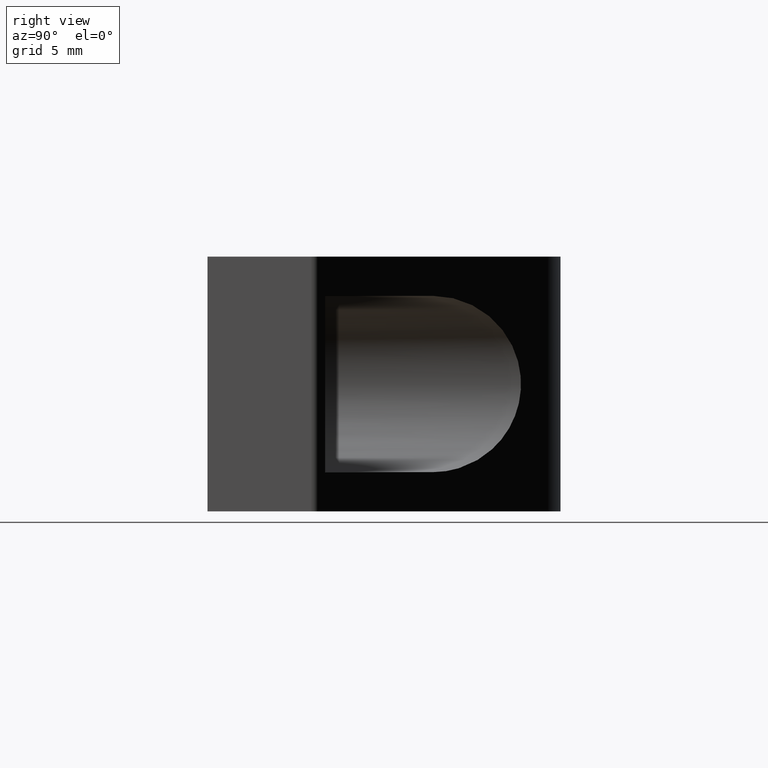
[diagram: clean part render]
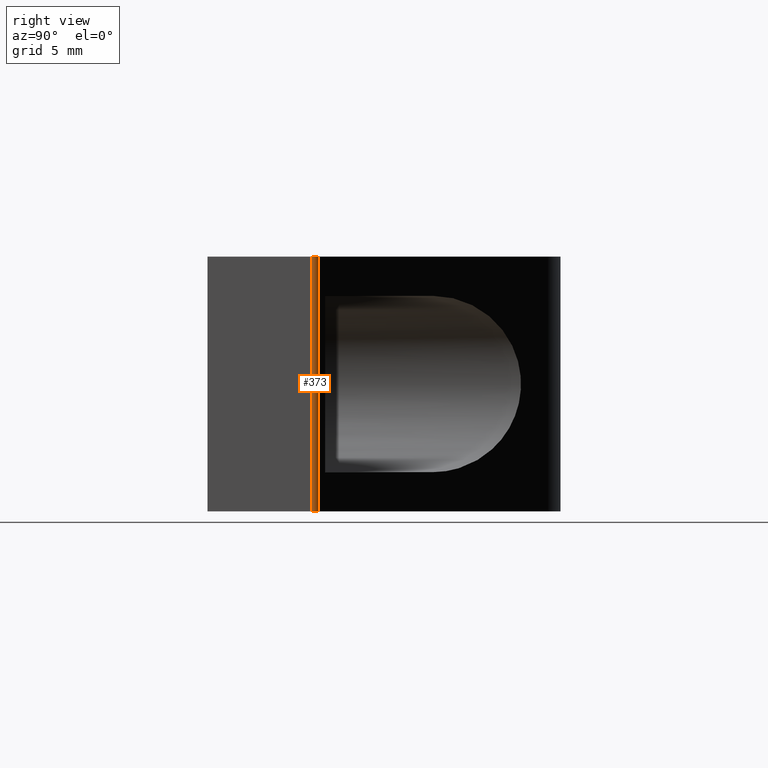
[diagram: same view with one face highlighted and labeled with its STEP entity id]
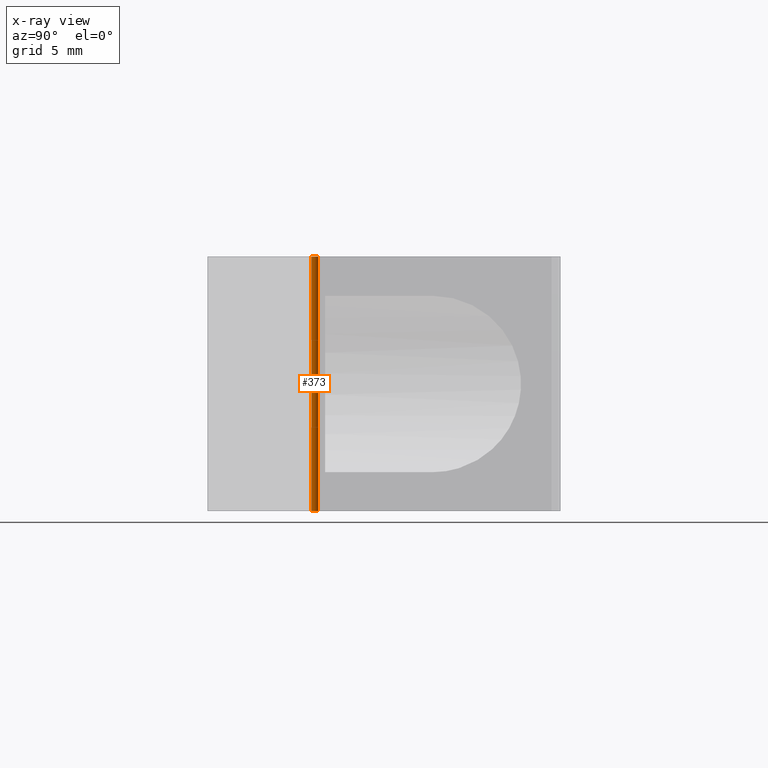
[diagram: x-ray of the same camera — body ghosted, the highlighted face saturated]
A machine part, right view. The second image highlights one B-rep face of the part: STEP entity #373.
The next image is the same camera in x-ray: the body ghosted, the highlighted face saturated — about 0% of this face is hidden behind the body in this view.
In plain terms, the highlighted cylindrical surface (edge-blend (fillet) strip) has radius 0.5 mm, axis along (0, 0, 1).
Its self-contained STEP definition (entity closure, byte-faithful):
#21=CYLINDRICAL_SURFACE('',#410,0.5);
#34=CIRCLE('',#409,0.5);
#35=CIRCLE('',#411,0.5);
#65=FACE_OUTER_BOUND('',#93,.T.);
#93=EDGE_LOOP('',(#310,#311,#312,#313));
#115=LINE('',#558,#147);
#129=LINE('',#616,#161);
#147=VECTOR('',#442,13.);
#161=VECTOR('',#508,13.);
#179=VERTEX_POINT('',#556);
#180=VERTEX_POINT('',#557);
#196=VERTEX_POINT('',#608);
#198=VERTEX_POINT('',#614);
#213=EDGE_CURVE('',#179,#180,#115,.T.);
#238=EDGE_CURVE('',#196,#179,#34,.T.);
#241=EDGE_CURVE('',#180,#198,#35,.T.);
#242=EDGE_CURVE('',#198,#196,#129,.T.);
#310=ORIENTED_EDGE('',*,*,#241,.T.);
#311=ORIENTED_EDGE('',*,*,#242,.T.);
#312=ORIENTED_EDGE('',*,*,#238,.T.);
#313=ORIENTED_EDGE('',*,*,#213,.T.);
#373=ADVANCED_FACE('',(#65),#21,.T.);
#409=AXIS2_PLACEMENT_3D('',#609,#500,#501);
#410=AXIS2_PLACEMENT_3D('',#613,#504,#505);
#411=AXIS2_PLACEMENT_3D('',#615,#506,#507);
#442=DIRECTION('',(0.,0.,1.));
#500=DIRECTION('center_axis',(0.,0.,1.));
#501=DIRECTION('ref_axis',(0.923879532511287,0.38268343236509,0.));
#504=DIRECTION('center_axis',(0.,0.,1.));
#505=DIRECTION('ref_axis',(0.923879532511287,0.38268343236509,0.));
#506=DIRECTION('center_axis',(0.,0.,-1.));
#507=DIRECTION('ref_axis',(0.923879532511287,0.38268343236509,0.));
#508=DIRECTION('',(0.,0.,-1.));
#556=CARTESIAN_POINT('',(29.8535533905933,5.64644660940672,0.));
#557=CARTESIAN_POINT('',(29.8535533905933,5.64644660940672,13.));
#558=CARTESIAN_POINT('',(29.8535533905933,5.64644660940672,0.));
#608=CARTESIAN_POINT('',(30.,5.29289321881345,0.));
#609=CARTESIAN_POINT('Origin',(29.5,5.29289321881345,0.));
#613=CARTESIAN_POINT('Origin',(29.5,5.29289321881345,0.));
#614=CARTESIAN_POINT('',(30.,5.29289321881345,13.));
#615=CARTESIAN_POINT('Origin',(29.5,5.29289321881345,13.));
#616=CARTESIAN_POINT('',(30.,5.29289321881345,0.));